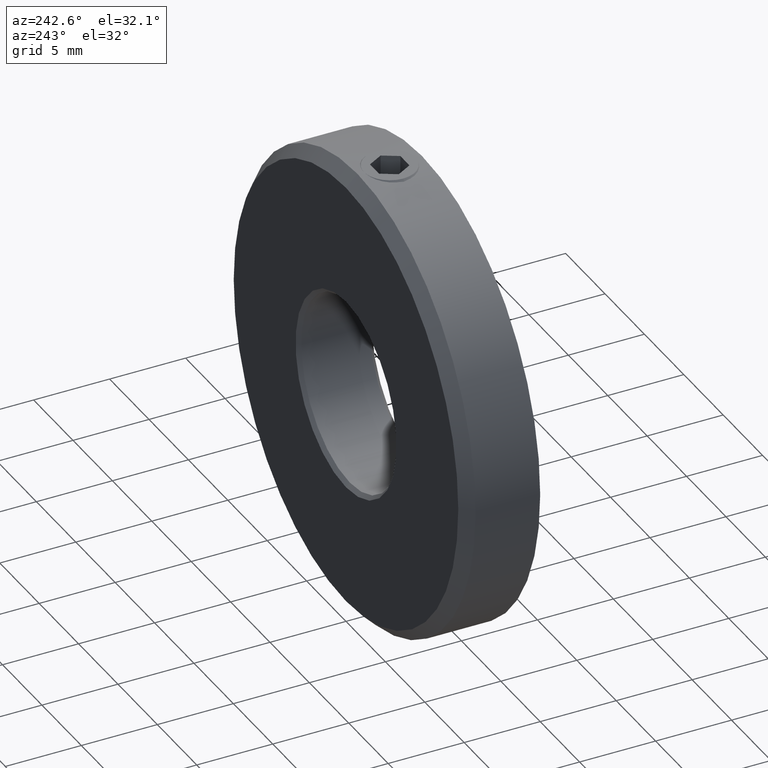
[diagram: clean part render]
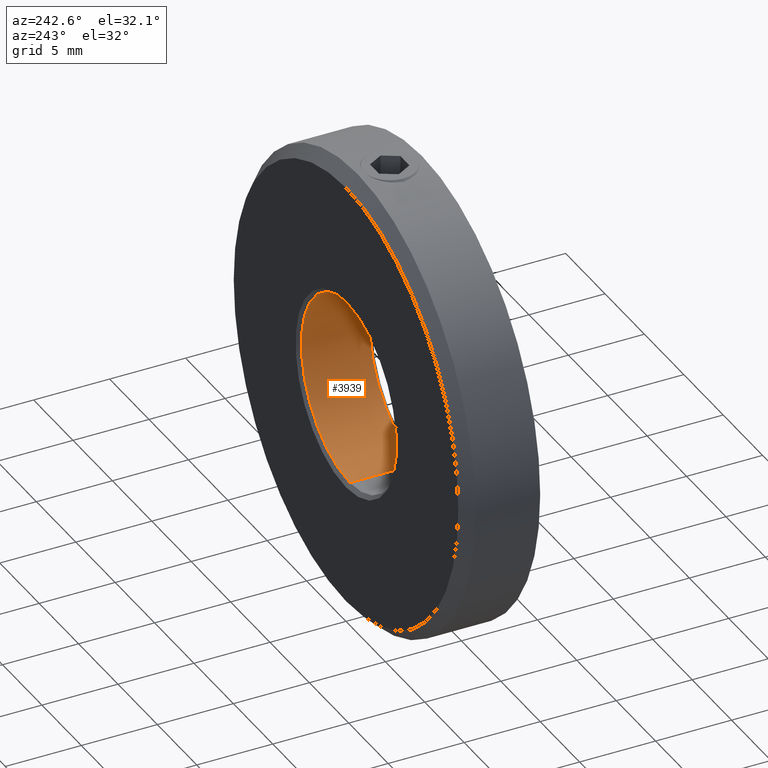
[diagram: same view with one face highlighted and labeled with its STEP entity id]
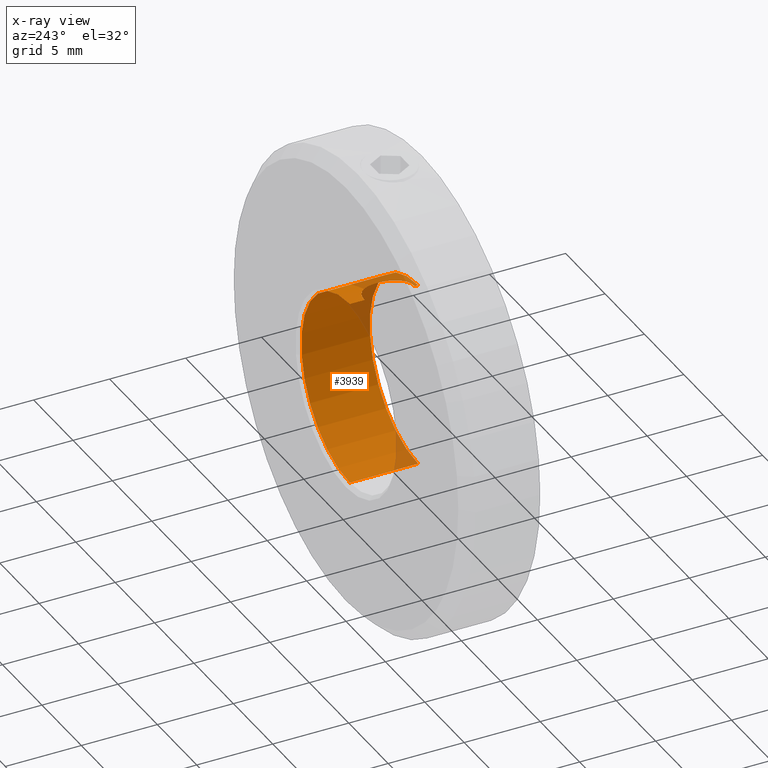
[diagram: x-ray of the same camera — body ghosted, the highlighted face saturated]
A machine part, auxiliary view. The second image highlights one B-rep face of the part: STEP entity #3939.
The next image is the same camera in x-ray: the body ghosted, the highlighted face saturated — about 10% of this face is hidden behind the body in this view.
In plain terms, the highlighted cylindrical surface (partial cylindrical patch) has radius 6.15 mm, axis along (0, 1, 0).
Its self-contained STEP definition (entity closure, byte-faithful):
#14 = AXIS2_PLACEMENT_3D ( 'NONE', #9404, #4627, #14019 ) ;
#111 = CARTESIAN_POINT ( 'NONE',  ( 1.649999999999997913, 2.233153305025307400, 5.924525297439449112 ) ) ;
#357 = CARTESIAN_POINT ( 'NONE',  ( 0.1079622310836299975, 3.774999999999999023, 6.150000000000001243 ) ) ;
#409 = CARTESIAN_POINT ( 'NONE',  ( 1.639097579718560294, 2.343038902179293004, 5.927591678024811905 ) ) ;
#456 = CARTESIAN_POINT ( 'NONE',  ( 0.000000000000000000, 0.2500000000000019429, 6.150000000000000355 ) ) ;
#457 = CARTESIAN_POINT ( 'NONE',  ( 0.7320771504271861296, 3.607624272928199982, 6.107092113599029481 ) ) ;
#489 = CYLINDRICAL_SURFACE ( 'NONE', #6844, 6.150000000000000355 ) ;
#510 = ORIENTED_EDGE ( 'NONE', *, *, #13899, .F. ) ;
#881 = CARTESIAN_POINT ( 'NONE',  ( 7.531577814756222064E-16, 4.750000000000003553, -6.150000000000000355 ) ) ;
#1528 = CARTESIAN_POINT ( 'NONE',  ( 1.565281989366984927, 2.658064543755391806, 5.947624607205462155 ) ) ;
#1688 = DIRECTION ( 'NONE',  ( -0.000000000000000000, 1.000000000000000000, -0.000000000000000000 ) ) ;
#1909 = CARTESIAN_POINT ( 'NONE',  ( 1.007308484793865810, 0.8137287445633151206, 6.067621027312323889 ) ) ;
#2012 = CARTESIAN_POINT ( 'NONE',  ( 1.091649650004585359, 0.8831155380061027627, 6.052829672424251406 ) ) ;
#2476 = VECTOR ( 'NONE', #9356, 1000.000000000000000 ) ;
#2818 = CARTESIAN_POINT ( 'NONE',  ( 0.000000000000000000, 0.000000000000000000, 0.000000000000000000 ) ) ;
#2881 = CARTESIAN_POINT ( 'NONE',  ( 1.007058444822014565, 3.436429051712182492, 6.067657241127044188 ) ) ;
#2886 = CARTESIAN_POINT ( 'NONE',  ( 7.531577814756222064E-16, 0.000000000000000000, -6.150000000000000355 ) ) ;
#3028 = VERTEX_POINT ( 'NONE', #7189 ) ;
#3061 = CARTESIAN_POINT ( 'NONE',  ( 1.123849909102322365E-16, 0.4750000000000021982, 6.150000000000000355 ) ) ;
#3138 = EDGE_CURVE ( 'NONE', #3028, #7300, #4042, .T. ) ;
#3195 = CARTESIAN_POINT ( 'NONE',  ( 1.649999999999998357, 1.908574584618577319, 5.924525297439450000 ) ) ;
#3236 = FACE_OUTER_BOUND ( 'NONE', #8465, .T. ) ;
#3405 = ORIENTED_EDGE ( 'NONE', *, *, #4610, .T. ) ;
#3515 = VERTEX_POINT ( 'NONE', #881 ) ;
#3712 = CARTESIAN_POINT ( 'NONE',  ( 7.531577814756222064E-16, 0.2500000000000019429, -6.150000000000000355 ) ) ;
#3722 = B_SPLINE_CURVE_WITH_KNOTS ( 'NONE', 3,
 ( #14091, #111, #409, #7410, #1528, #8490, #9725, #3844, #2881, #4945, #457, #8612, #10875, #8661, #357, #12104 ),
 .UNSPECIFIED., .F., .F.,
 ( 4, 2, 2, 2, 2, 2, 2, 4 ),
 ( 0.002591957604385719191, 0.002915774450140349357, 0.003239591295894979524, 0.003887224987404238989, 0.004211041833158868722, 0.004534858678913498455, 0.004858675524668128187, 0.005182492370422757920 ),
 .UNSPECIFIED. ) ;
#3813 = ORIENTED_EDGE ( 'NONE', *, *, #11381, .T. ) ;
#3844 = CARTESIAN_POINT ( 'NONE',  ( 1.089826785202117732, 3.368552562029845543, 6.053166378554431404 ) ) ;
#3865 = EDGE_CURVE ( 'NONE', #7300, #11105, #3722, .T. ) ;
#3939 = ADVANCED_FACE ( 'NONE', ( #3236 ), #489, .F. ) ;
#3951 = VECTOR ( 'NONE', #1688, 1000.000000000000000 ) ;
#3965 = CIRCLE ( 'NONE', #5228, 6.150000000000000355 ) ;
#4042 = B_SPLINE_CURVE_WITH_KNOTS ( 'NONE', 3,
 ( #3061, #14780, #6660, #10211, #10060, #13506, #11209, #1909, #2012, #7644, #4365, #12338, #3195, #6518 ),
 .UNSPECIFIED., .F., .F.,
 ( 4, 2, 2, 2, 2, 2, 4 ),
 ( 1.266987464032871433E-19, 0.0003239947005482150615, 0.0006479894010964300146, 0.0009719841016446451303, 0.001295978802192860029, 0.001943968203289289610, 0.002591957604385719191 ),
 .UNSPECIFIED. ) ;
#4346 = CARTESIAN_POINT ( 'NONE',  ( 0.000000000000000000, 0.000000000000000000, 6.150000000000000355 ) ) ;
#4365 = CARTESIAN_POINT ( 'NONE',  ( 1.441465016673614263, 1.293833577341375829, 5.979290149929265219 ) ) ;
#4610 = EDGE_CURVE ( 'NONE', #6704, #3515, #10760, .T. ) ;
#4627 = DIRECTION ( 'NONE',  ( 0.000000000000000000, 1.000000000000000000, 0.000000000000000000 ) ) ;
#4847 = CARTESIAN_POINT ( 'NONE',  ( 0.000000000000000000, 4.750000000000003553, 6.150000000000000355 ) ) ;
#4945 = CARTESIAN_POINT ( 'NONE',  ( 0.8287331372236177440, 3.555808951687663200, 6.094574020746344800 ) ) ;
#5228 = AXIS2_PLACEMENT_3D ( 'NONE', #14449, #6578, #6182 ) ;
#5454 = EDGE_CURVE ( 'NONE', #8071, #3028, #5829, .T. ) ;
#5516 = DIRECTION ( 'NONE',  ( -0.000000000000000000, 1.000000000000000000, -0.000000000000000000 ) ) ;
#5829 = LINE ( 'NONE', #4346, #9140 ) ;
#6182 = DIRECTION ( 'NONE',  ( 0.000000000000000000, 0.000000000000000000, 1.000000000000000000 ) ) ;
#6276 = CARTESIAN_POINT ( 'NONE',  ( 1.649999999999998135, 2.125000000000000000, 5.924525297439450888 ) ) ;
#6312 = ORIENTED_EDGE ( 'NONE', *, *, #3865, .T. ) ;
#6518 = CARTESIAN_POINT ( 'NONE',  ( 1.649999999999998135, 2.125000000000000000, 5.924525297439450888 ) ) ;
#6578 = DIRECTION ( 'NONE',  ( -0.000000000000000000, -1.000000000000000000, -0.000000000000000000 ) ) ;
#6660 = CARTESIAN_POINT ( 'NONE',  ( 0.2172508018980835176, 0.4858089192657868427, 6.147075070408425823 ) ) ;
#6704 = VERTEX_POINT ( 'NONE', #4847 ) ;
#6787 = CARTESIAN_POINT ( 'NONE',  ( -3.568863533205033321E-21, 3.774999999999998579, 6.150000000000000355 ) ) ;
#6844 = AXIS2_PLACEMENT_3D ( 'NONE', #2818, #8706, #14347 ) ;
#7057 = ORIENTED_EDGE ( 'NONE', *, *, #5454, .T. ) ;
#7189 = CARTESIAN_POINT ( 'NONE',  ( 1.123849909102322365E-16, 0.4750000000000021982, 6.150000000000000355 ) ) ;
#7227 = LINE ( 'NONE', #11775, #2476 ) ;
#7300 = VERTEX_POINT ( 'NONE', #6276 ) ;
#7410 = CARTESIAN_POINT ( 'NONE',  ( 1.596648386737795633, 2.554995078844386036, 5.939166431946142133 ) ) ;
#7644 = CARTESIAN_POINT ( 'NONE',  ( 1.318775019654802483, 1.110487137231608745, 6.008919741057689556 ) ) ;
#8071 = VERTEX_POINT ( 'NONE', #456 ) ;
#8465 = EDGE_LOOP ( 'NONE', ( #510, #3813, #7057, #10411, #6312, #11623, #3405 ) ) ;
#8490 = CARTESIAN_POINT ( 'NONE',  ( 1.440399178820213510, 2.958553994554025124, 5.979559758338621300 ) ) ;
#8612 = CARTESIAN_POINT ( 'NONE',  ( 0.5330280935492184291, 3.690245265235051697, 6.127674280642562366 ) ) ;
#8661 = CARTESIAN_POINT ( 'NONE',  ( 0.2174685120599810506, 3.764197438409595975, 6.147076275457228789 ) ) ;
#8706 = DIRECTION ( 'NONE',  ( -0.000000000000000000, 1.000000000000000000, -0.000000000000000000 ) ) ;
#9140 = VECTOR ( 'NONE', #5516, 1000.000000000000000 ) ;
#9356 = DIRECTION ( 'NONE',  ( -0.000000000000000000, 1.000000000000000000, -0.000000000000000000 ) ) ;
#9404 = CARTESIAN_POINT ( 'NONE',  ( 0.000000000000000000, 4.750000000000003553, 0.000000000000000000 ) ) ;
#9725 = CARTESIAN_POINT ( 'NONE',  ( 1.318855725708773186, 3.139741917861362808, 6.008935187501036168 ) ) ;
#10060 = CARTESIAN_POINT ( 'NONE',  ( 0.5340135089703149651, 0.5600653356888852796, 6.127593514785447226 ) ) ;
#10211 = CARTESIAN_POINT ( 'NONE',  ( 0.4288999597655306917, 0.5280685253909345178, 6.135941220112463235 ) ) ;
#10411 = ORIENTED_EDGE ( 'NONE', *, *, #3138, .T. ) ;
#10760 = CIRCLE ( 'NONE', #14, 6.150000000000000355 ) ;
#10875 = CARTESIAN_POINT ( 'NONE',  ( 0.4301453131644755179, 3.721632645723116362, 6.135862962908261053 ) ) ;
#11105 = VERTEX_POINT ( 'NONE', #6787 ) ;
#11209 = CARTESIAN_POINT ( 'NONE',  ( 0.8282800349449573885, 0.6938973228367598667, 6.094640883459169878 ) ) ;
#11381 = EDGE_CURVE ( 'NONE', #11666, #8071, #3965, .T. ) ;
#11623 = ORIENTED_EDGE ( 'NONE', *, *, #11645, .T. ) ;
#11645 = EDGE_CURVE ( 'NONE', #11105, #6704, #7227, .T. ) ;
#11666 = VERTEX_POINT ( 'NONE', #3712 ) ;
#11775 = CARTESIAN_POINT ( 'NONE',  ( 0.000000000000000000, 0.000000000000000000, 6.150000000000000355 ) ) ;
#12104 = CARTESIAN_POINT ( 'NONE',  ( -3.568863533205033321E-21, 3.774999999999998579, 6.150000000000000355 ) ) ;
#12338 = CARTESIAN_POINT ( 'NONE',  ( 1.606244542969342826, 1.690675830018398607, 5.937146668182975873 ) ) ;
#13506 = CARTESIAN_POINT ( 'NONE',  ( 0.7336703800245292229, 0.6431367455800813815, 6.106905966500395522 ) ) ;
#13899 = EDGE_CURVE ( 'NONE', #11666, #3515, #14878, .T. ) ;
#14019 = DIRECTION ( 'NONE',  ( 0.000000000000000000, 0.000000000000000000, 1.000000000000000000 ) ) ;
#14091 = CARTESIAN_POINT ( 'NONE',  ( 1.649999999999998135, 2.125000000000000000, 5.924525297439450888 ) ) ;
#14347 = DIRECTION ( 'NONE',  ( 0.000000000000000000, 0.000000000000000000, 1.000000000000000000 ) ) ;
#14449 = CARTESIAN_POINT ( 'NONE',  ( 0.000000000000000000, 0.2500000000000019429, 0.000000000000000000 ) ) ;
#14780 = CARTESIAN_POINT ( 'NONE',  ( 0.1095902436947241015, 0.4750000000000020872, 6.150000000000000355 ) ) ;
#14878 = LINE ( 'NONE', #2886, #3951 ) ;